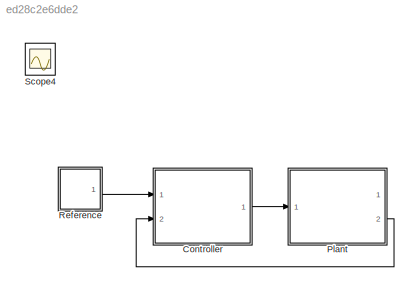
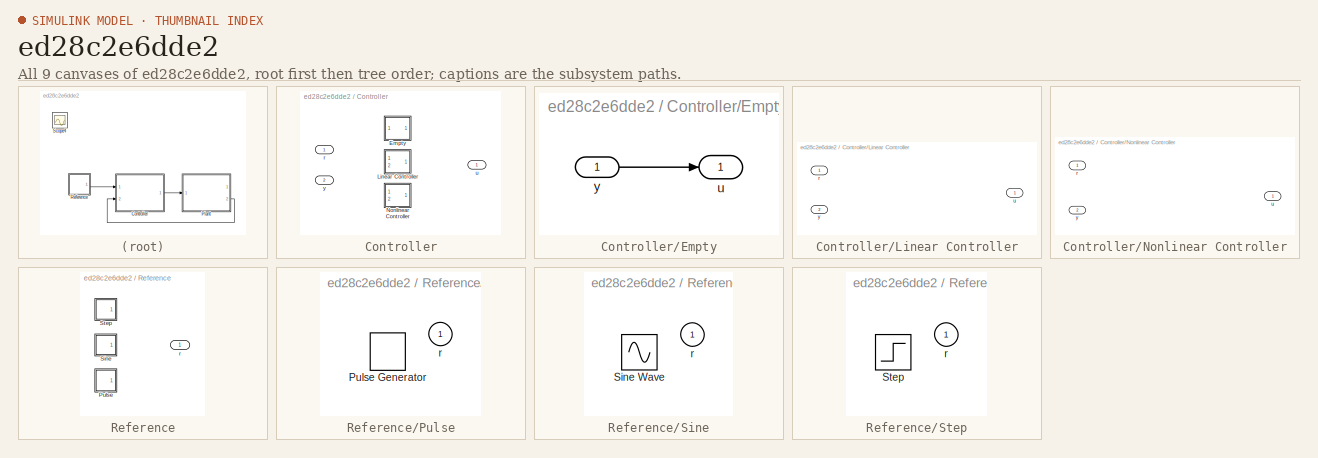
[diagram: thumbnail index - all 9 canvases of the model, root first then tree order]
MODEL slx_ed28c2e6dde2
KIND model
CONFIG AbsTol = auto
CONFIG EnableMultiTasking = off
CONFIG FixedStep = auto
CONFIG MaxStep = auto
CONFIG MinStep = auto
CONFIG PreLoadFcn = INERTIAL_REF_STEP=Simulink.Variant('REF_MODE==inertial_REF_TYPE.STEP')\nINERTIAL_REF_SINE=Simulink.Variant('REF_MODE==inertial_REF_TYPE.SINE')\nINERTIAL_REF_PULSE=Simulink.Variant('REF_MODE==inertial_REF_TYPE.PULSE')\n\nINERTIAL_CTRL_EMPTY=Simulink.Variant('CTRL_MODE==inertial_CTRL_TYPE.EMPTY')\nINERTIAL_CTRL_LINEAR=Simulink.Variant('CTRL_MODE==inertial_CTRL_TYPE.LINEAR')\nINERTIAL_CTRL_NONLINEAR=Simuli...<+121ch>
CONFIG RelTol = 1e-3
CONFIG SampleTimeConstraint = Unconstrained
CONFIG Solver = VariableStepAuto
CONFIG SolverName = VariableStepAuto
CONFIG StartTime = 0.0
CONFIG StopTime = 18
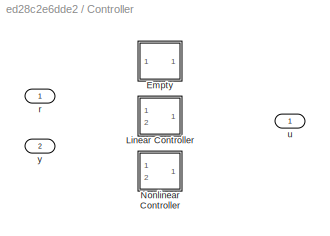
BLOCK [SubSystem] Controller
  Ports = [2, 1]
  RequestExecContextInheritance = off
  Variant = on
BLOCK [SubSystem] Controller/Empty
  Ports = [1, 1]
  RequestExecContextInheritance = off
  Variant = off
  VariantControl = INERTIAL_CTRL_EMPTY
BLOCK [Outport] Controller/Empty/u
  IconDisplay = Port number
BLOCK [Inport] Controller/Empty/y
  IconDisplay = Port number
BLOCK [SubSystem] Controller/Linear Controller
  Ports = [2, 1]
  RequestExecContextInheritance = off
  Variant = off
  VariantControl = INERTIAL_CTRL_LINEAR
BLOCK [Inport] Controller/Linear Controller/r
  IconDisplay = Port number
BLOCK [Outport] Controller/Linear Controller/u
  IconDisplay = Port number
BLOCK [Inport] Controller/Linear Controller/y
  IconDisplay = Port number
  Port = 2
BLOCK [SubSystem] Controller/Nonlinear Controller
  Ports = [2, 1]
  RequestExecContextInheritance = off
  Variant = off
  VariantControl = INERTIAL_CTRL_NONLINEAR
BLOCK [Inport] Controller/Nonlinear Controller/r
  IconDisplay = Port number
BLOCK [Outport] Controller/Nonlinear Controller/u
  IconDisplay = Port number
BLOCK [Inport] Controller/Nonlinear Controller/y
  IconDisplay = Port number
  Port = 2
BLOCK [Inport] Controller/r
  IconDisplay = Port number
BLOCK [Outport] Controller/u
  IconDisplay = Port number
BLOCK [Inport] Controller/y
  IconDisplay = Port number
  Port = 2
BLOCK [ModelReference] Plant
  J1 = J1
  J2 = J2
  ModelNameDialog = Plant
  ModelReferenceVersion = 1.29
  ParameterArgumentNames = J1,J2,c1,c2,d1,d2
  ParameterArgumentValues = J1,J2,c1,c2,d1,d2
  Ports = [1, 2]
  UsingDefaultArgumentValue = 0,0,0,0,0,0
  Variant = off
  c1 = c1
  c2 = c2
  d1 = d1
  d2 = d2
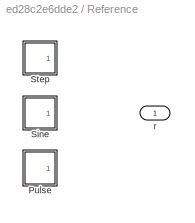
BLOCK [SubSystem] Reference
  Ports = [0, 1]
  RequestExecContextInheritance = off
  Variant = on
BLOCK [SubSystem] Reference/Pulse
  Ports = [0, 1]
  RequestExecContextInheritance = off
  Variant = off
  VariantControl = INERTIAL_REF_PULSE
BLOCK [DiscretePulseGenerator] Reference/Pulse/Pulse Generator
  Period = 10
  Ports = [0, 1]
  PulseType = Time based
  PulseWidth = 5
BLOCK [Outport] Reference/Pulse/r
  IconDisplay = Port number
BLOCK [SubSystem] Reference/Sine
  Ports = [0, 1]
  RequestExecContextInheritance = off
  Variant = off
  VariantControl = INERTIAL_REF_SINE
BLOCK [Sin] Reference/Sine/Sine Wave
  Ports = [0, 1]
  SampleTime = 0
BLOCK [Outport] Reference/Sine/r
  IconDisplay = Port number
BLOCK [SubSystem] Reference/Step
  Ports = [0, 1]
  RequestExecContextInheritance = off
  Variant = off
  VariantControl = INERTIAL_REF_STEP
BLOCK [Step] Reference/Step/Step
  SampleTime = 0
BLOCK [Outport] Reference/Step/r
  IconDisplay = Port number
BLOCK [Outport] Reference/r
  IconDisplay = Port number
BLOCK [Scope] Scope4
  IOType = viewer
  NumInputPorts = 1
  Ports = []
  ScopeSpecificationString = Simulink.scopes.TimeScopeBlockCfg('CurrentConfiguration', extmgr.ConfigurationSet(extmgr.Configuration('Core','General UI',true),extmgr.Configuration('Core','Source UI',true),extmgr.Configuration('Sources','WiredSimulink',true,'DataLoggingVariableName','ScopeData4'),extmgr.Configuration('Visuals','Time Domain',true,'SerializedDisplays',{struct('MinYLimReal','-2.03447','MaxYLimReal','0.22605','YLab...<+1388ch>
LINE Controller/Empty/y:1 -> Controller/Empty/u:1
LINE Controller:1 -> Plant:1
LINE Plant:2 -> Controller:2
LINE Reference:1 -> Controller:1
